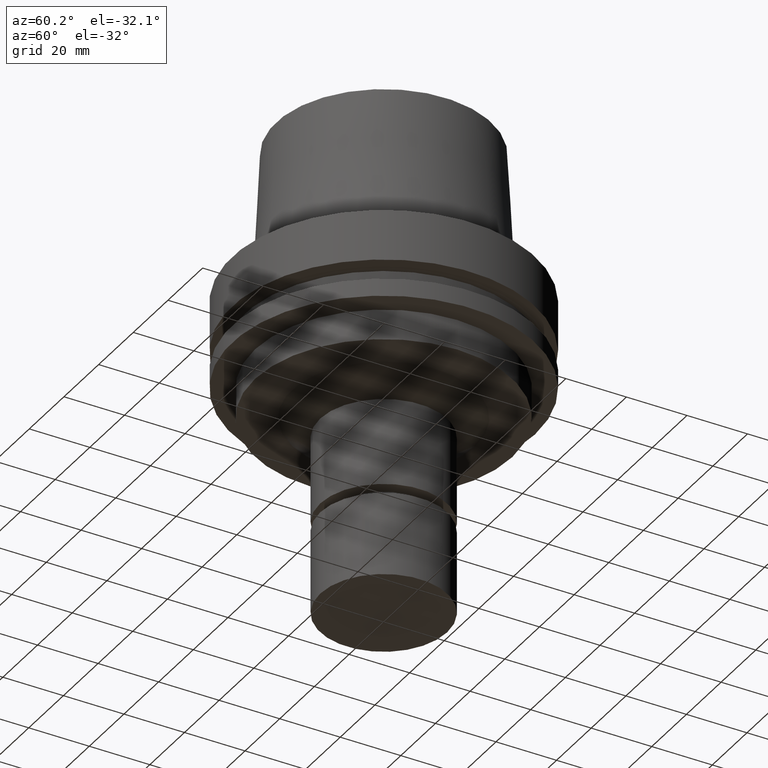
[diagram: clean part render]
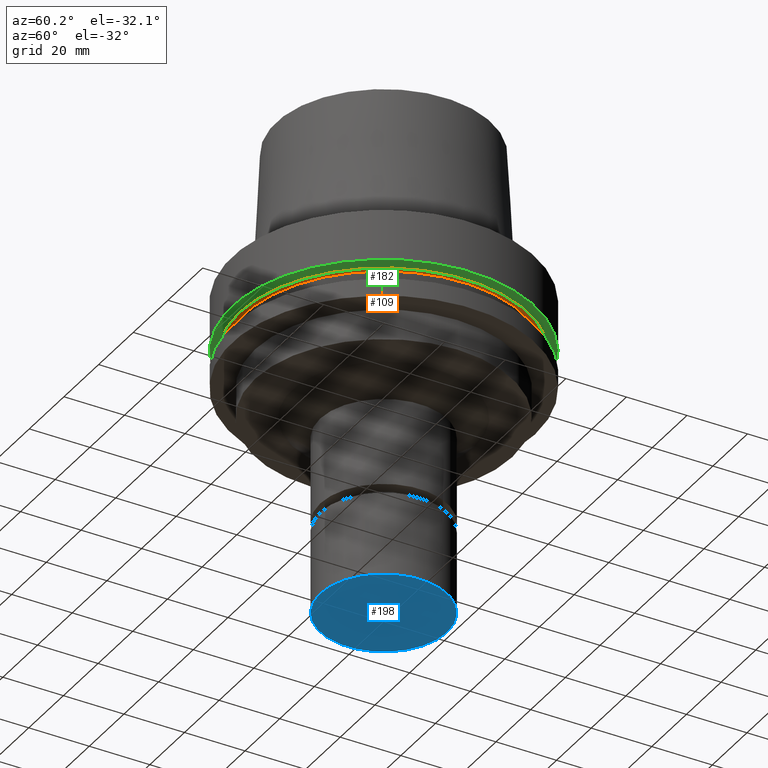
[diagram: same view with three faces highlighted in distinct colors, each labeled with its STEP entity id]
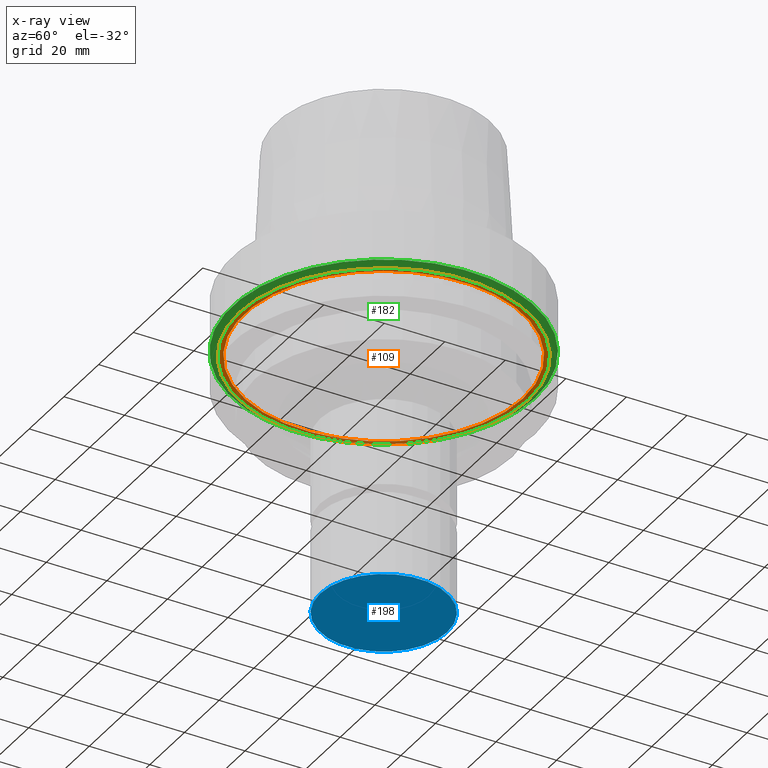
[diagram: x-ray of the same camera — body ghosted, the three highlighted faces saturated]
A machine part, auxiliary view with three faces highlighted in distinct colors.
The next image is the same camera in x-ray (body ghosted, the three faces saturated) — at least one of them is partly hidden behind the body in this view.
Their STEP definitions:

[orange] entity #109 — the highlighted planar face has unit normal (0, 0, -1).
#109=ADVANCED_FACE('Unnamed[1]',(#265,#266),#267,.T.);
#143=EDGE_CURVE('Unnamed[1]',#318,#318,#319,.T.);
#187=EDGE_CURVE('Unnamed[1]',#387,#387,#388,.T.);
#265=FACE_BOUND('',#474,.T.);
#266=FACE_OUTER_BOUND('',#475,.T.);
#267=PLANE('',#476);
#318=VERTEX_POINT('',#539);
#319=CIRCLE('',#540,47.62259526);
#387=VERTEX_POINT('',#626);
#388=CIRCLE('',#627,46.0);
#474=EDGE_LOOP('',(#702));
#475=EDGE_LOOP('',(#703));
#476=AXIS2_PLACEMENT_3D('',#704,#705,#706);
#539=CARTESIAN_POINT('',(1.10983616172729E-015,47.62259526,-18.125));
#540=AXIS2_PLACEMENT_3D('',#761,#762,#763);
#626=CARTESIAN_POINT('',(1.10983616172729E-015,46.0,-18.125));
#627=AXIS2_PLACEMENT_3D('',#838,#839,#840);
#702=ORIENTED_EDGE('',*,*,#187,.F.);
#703=ORIENTED_EDGE('',*,*,#143,.T.);
#704=CARTESIAN_POINT('',(1.10983616172729E-015,46.81129763,-18.125));
#705=DIRECTION('',(6.12323399573677E-017,1.22464679914735E-016,-1.0));
#706=DIRECTION('',(-1.23259516440783E-032,1.0,1.22464679914735E-016));
#761=CARTESIAN_POINT('',(1.10983616172729E-015,2.21967232345458E-015,-18.125));
#762=DIRECTION('',(6.12323399573676E-017,1.22464679914735E-016,-1.0));
#763=DIRECTION('',(-1.23259516440783E-032,1.0,1.22464679914735E-016));
#838=CARTESIAN_POINT('',(1.10983616172729E-015,2.21967232345458E-015,-18.125));
#839=DIRECTION('',(6.12323399573677E-017,1.22464679914735E-016,-1.0));
#840=DIRECTION('',(-1.23259516440783E-032,1.0,1.22464679914735E-016));

[blue] entity #198 — the highlighted planar face has unit normal (0, 0, -1).
#87=EDGE_CURVE('Unnamed[1]',#232,#232,#233,.T.);
#198=ADVANCED_FACE('Unnamed[1]',(#403),#404,.T.);
#232=VERTEX_POINT('',#434);
#233=CIRCLE('',#435,21.0);
#403=FACE_OUTER_BOUND('',#647,.T.);
#404=PLANE('',#648);
#434=CARTESIAN_POINT('',(6.4293956955236E-015,21.0,-105.0));
#435=AXIS2_PLACEMENT_3D('',#667,#668,#669);
#647=EDGE_LOOP('',(#854));
#648=AXIS2_PLACEMENT_3D('',#855,#856,#857);
#667=CARTESIAN_POINT('',(6.4293956955236E-015,1.28587913910472E-014,-105.0));
#668=DIRECTION('',(6.12323399573677E-017,1.22464679914735E-016,-1.0));
#669=DIRECTION('',(-1.23259516440783E-032,1.0,1.22464679914735E-016));
#854=ORIENTED_EDGE('',*,*,#87,.T.);
#855=CARTESIAN_POINT('',(6.4293956955236E-015,10.5,-105.0));
#856=DIRECTION('',(6.12323399573677E-017,1.22464679914735E-016,-1.0));
#857=DIRECTION('',(-1.23259516440783E-032,1.0,1.22464679914735E-016));

[green] entity #182 — the highlighted conical surface has half-angle 60 deg.
#143=EDGE_CURVE('Unnamed[1]',#318,#318,#319,.T.);
#149=EDGE_CURVE('Unnamed[1]',#327,#327,#328,.T.);
#182=ADVANCED_FACE('Unnamed[1]',(#378,#379),#380,.T.);
#318=VERTEX_POINT('',#539);
#319=CIRCLE('',#540,47.62259526);
#327=VERTEX_POINT('',#551);
#328=CIRCLE('',#552,50.0);
#378=FACE_BOUND('',#615,.T.);
#379=FACE_BOUND('',#616,.T.);
#380=CONICAL_SURFACE('',#617,48.81129763,1.04719755328238);
#539=CARTESIAN_POINT('',(1.10983616172729E-015,47.62259526,-18.125));
#540=AXIS2_PLACEMENT_3D('',#761,#762,#763);
#551=CARTESIAN_POINT('',(1.0257889421431E-015,50.0,-16.75240474));
#552=AXIS2_PLACEMENT_3D('',#770,#771,#772);
#615=EDGE_LOOP('',(#827));
#616=EDGE_LOOP('',(#828));
#617=AXIS2_PLACEMENT_3D('',#829,#830,#831);
#761=CARTESIAN_POINT('',(1.10983616172729E-015,2.21967232345458E-015,-18.125));
#762=DIRECTION('',(6.12323399573676E-017,1.22464679914735E-016,-1.0));
#763=DIRECTION('',(-1.23259516440783E-032,1.0,1.22464679914735E-016));
#770=CARTESIAN_POINT('',(1.0257889421431E-015,2.05157788428619E-015,-16.75240474));
#771=DIRECTION('',(6.12323399573677E-017,1.22464679914735E-016,-1.0));
#772=DIRECTION('',(-1.23259516440783E-032,1.0,1.22464679914735E-016));
#827=ORIENTED_EDGE('',*,*,#143,.F.);
#828=ORIENTED_EDGE('',*,*,#149,.T.);
#829=CARTESIAN_POINT('',(1.06781255193519E-015,2.13562510387038E-015,-17.43870237));
#830=DIRECTION('',(-6.12323399573677E-017,-1.22464679914735E-016,1.0));
#831=DIRECTION('',(-1.23259516440783E-032,1.0,1.22464679914735E-016));